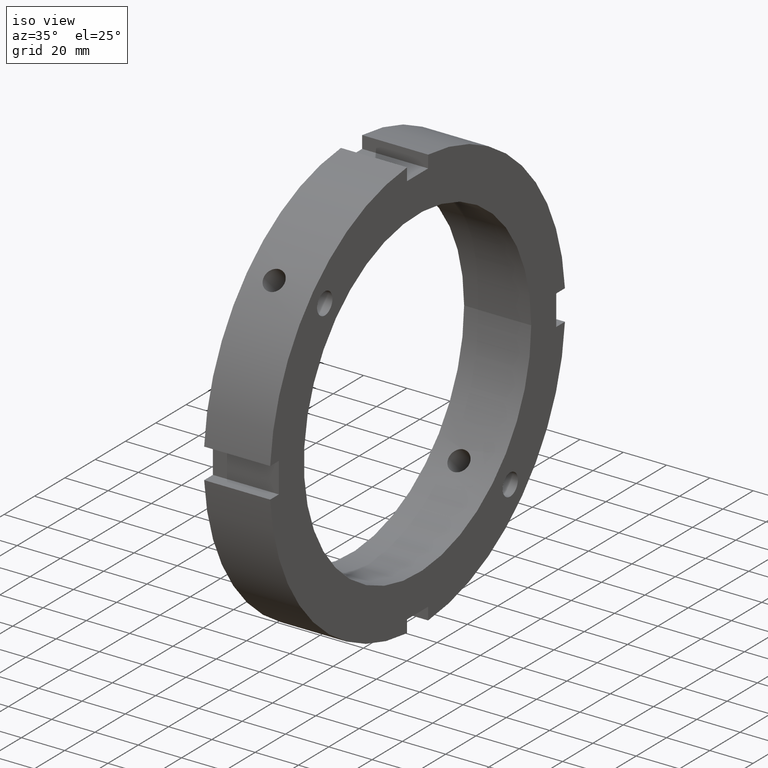
[diagram: clean part render]
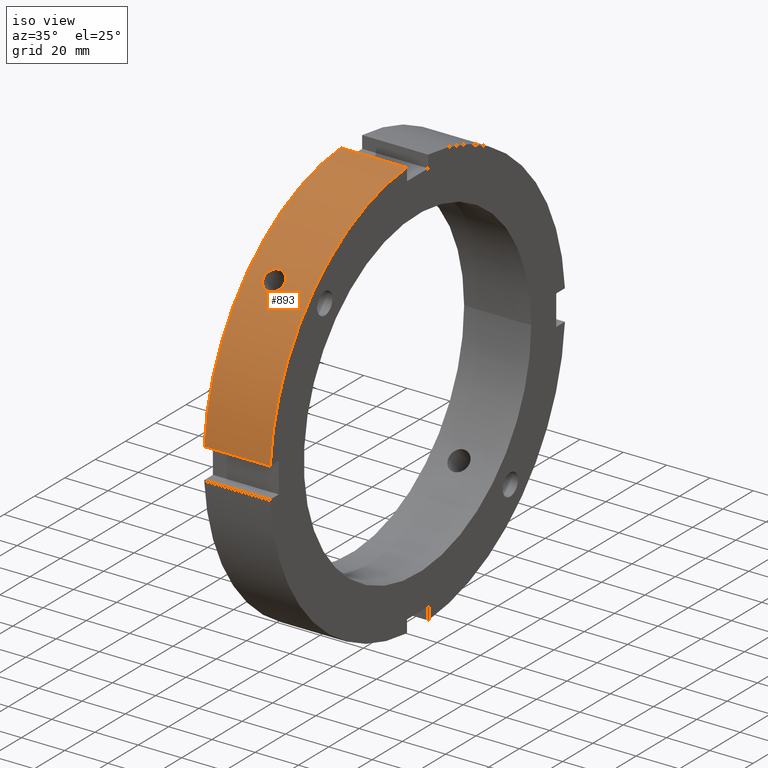
[diagram: same view with one face highlighted and labeled with its STEP entity id]
A machine part, iso view. The second image highlights one B-rep face of the part: STEP entity #893.
In plain terms, the highlighted cylindrical surface (partial cylindrical patch) has radius 97.5 mm, axis along (1, 0, 0).
Its self-contained STEP definition (entity closure, byte-faithful):
#209=CARTESIAN_POINT('',(12.999999999999982,-72.253425645310884,65.465200545920055));
#210=VERTEX_POINT('',#209);
#211=CARTESIAN_POINT('',(12.999999999999982,-72.253425645310884,65.465200545920055));
#212=CARTESIAN_POINT('',(12.397196717168008,-72.253425645310884,65.465200545920055));
#213=CARTESIAN_POINT('',(11.754280275162586,-72.172591081884917,65.554765032491147));
#214=CARTESIAN_POINT('',(10.571688298164828,-71.841959715854259,65.916939750421719));
#215=CARTESIAN_POINT('',(10.032004506462687,-71.591939672887804,66.189319152910457));
#216=CARTESIAN_POINT('',(9.179770478742569,-71.010310003639617,66.812930403979919));
#217=CARTESIAN_POINT('',(8.810378225336786,-70.639869673564718,67.205718266233347));
#218=CARTESIAN_POINT('',(8.32049028985319,-69.819408934717572,68.057695312017486));
#219=CARTESIAN_POINT('',(8.199999999999982,-69.369157370078582,68.516664961298176));
#220=CARTESIAN_POINT('',(8.199999999999982,-68.516664961298176,69.369157370078597));
#221=CARTESIAN_POINT('',(8.320490289853185,-68.057695312017486,69.819408934717586));
#222=CARTESIAN_POINT('',(8.810378225336773,-67.205718266233333,70.639869673564718));
#223=CARTESIAN_POINT('',(9.179770478742576,-66.812930403979919,71.010310003639589));
#224=CARTESIAN_POINT('',(10.032004506462687,-66.189319152910471,71.591939672887776));
#225=CARTESIAN_POINT('',(10.571688298164815,-65.916939750421705,71.841959715854273));
#226=CARTESIAN_POINT('',(11.754280275162577,-65.554765032491133,72.172591081884946));
#227=CARTESIAN_POINT('',(12.397196717168006,-65.465200545920027,72.253425645310912));
#228=CARTESIAN_POINT('',(13.602803282831957,-65.465200545920027,72.253425645310912));
#229=CARTESIAN_POINT('',(14.245719724837379,-65.554765032491133,72.172591081884946));
#230=CARTESIAN_POINT('',(15.428311701835138,-65.916939750421705,71.841959715854273));
#231=CARTESIAN_POINT('',(15.967995493537277,-66.189319152910443,71.591939672887804));
#232=CARTESIAN_POINT('',(16.820229521257399,-66.812930403979891,71.010310003639617));
#233=CARTESIAN_POINT('',(17.189621774663184,-67.205718266233333,70.639869673564732));
#234=CARTESIAN_POINT('',(17.679509710146782,-68.057695312017486,69.8194089347176));
#235=CARTESIAN_POINT('',(17.799999999999983,-68.516664961298176,69.369157370078597));
#236=CARTESIAN_POINT('',(17.799999999999983,-69.369157370078582,68.51666496129819));
#237=CARTESIAN_POINT('',(17.679509710146778,-69.819408934717586,68.057695312017501));
#238=CARTESIAN_POINT('',(17.189621774663188,-70.639869673564718,67.205718266233362));
#239=CARTESIAN_POINT('',(16.820229521257392,-71.010310003639589,66.812930403979919));
#240=CARTESIAN_POINT('',(15.967995493537281,-71.591939672887776,66.189319152910485));
#241=CARTESIAN_POINT('',(15.428311701835149,-71.841959715854259,65.916939750421719));
#242=CARTESIAN_POINT('',(14.245719724837384,-72.172591081884917,65.554765032491147));
#243=CARTESIAN_POINT('',(13.602803282831958,-72.253425645310884,65.465200545920055));
#244=CARTESIAN_POINT('',(12.999999999999982,-72.253425645310884,65.465200545920055));
#245=B_SPLINE_CURVE_WITH_KNOTS('',3,(#211,#212,#213,#214,#215,#216,#217,#218,#219,#220,#221,#222,#223,#224,#225,#226,#227,#228,#229,#230,#231,#232,#233,#234,#235,#236,#237,#238,#239,#240,#241,#242,#243,#244),.UNSPECIFIED.,.T.,.U.,(4,2,2,2,2,2,2,2,2,2,2,2,2,2,2,2,4),(0.0,0.180840984849592,0.361681969699184,0.542522918646788,0.723363867594392,0.904204816541995,1.085045765489597,1.26588675033919,1.446727735188783,1.627568720038375,1.808409704887966,1.989250653835571,2.170091602783176,2.350932551730779,2.531773500678381,2.712614485527974,2.893455470377567),.UNSPECIFIED.);
#246=EDGE_CURVE('',#210,#210,#245,.T.);
#637=CARTESIAN_POINT('',(0.499999999999972,-97.248393302923006,7.000000000000006));
#638=VERTEX_POINT('',#637);
#653=CARTESIAN_POINT('',(30.999999999999979,-97.248393302923006,7.000000000000006));
#654=VERTEX_POINT('',#653);
#661=CARTESIAN_POINT('',(0.499999999999972,-97.248393302923006,7.000000000000007));
#662=DIRECTION('',(1.0,0.0,0.0));
#663=VECTOR('',#662,30.500000000000007);
#664=LINE('',#661,#663);
#665=EDGE_CURVE('',#638,#654,#664,.T.);
#777=CARTESIAN_POINT('',(0.499999999999972,-6.999999999999989,97.248393302923006));
#778=VERTEX_POINT('',#777);
#787=CARTESIAN_POINT('',(30.999999999999979,-6.999999999999989,97.248393302923006));
#788=VERTEX_POINT('',#787);
#789=CARTESIAN_POINT('',(30.999999999999979,-6.999999999999991,97.248393302923006));
#790=DIRECTION('',(-1.0,0.0,0.0));
#791=VECTOR('',#790,30.500000000000007);
#792=LINE('',#789,#791);
#793=EDGE_CURVE('',#788,#778,#792,.T.);
#867=CARTESIAN_POINT('',(15.749999999999975,0.0,0.0));
#868=DIRECTION('',(1.0,0.0,0.0));
#869=DIRECTION('',(0.0,1.0,0.0));
#870=AXIS2_PLACEMENT_3D('',#867,#868,#869);
#871=CYLINDRICAL_SURFACE('',#870,97.5);
#872=ORIENTED_EDGE('',*,*,#665,.T.);
#873=CARTESIAN_POINT('',(30.999999999999979,0.0,0.0));
#874=DIRECTION('',(1.0,0.0,0.0));
#875=DIRECTION('',(0.0,1.0,0.0));
#876=AXIS2_PLACEMENT_3D('',#873,#874,#875);
#877=CIRCLE('',#876,97.5);
#878=EDGE_CURVE('',#788,#654,#877,.T.);
#879=ORIENTED_EDGE('',*,*,#878,.F.);
#880=ORIENTED_EDGE('',*,*,#793,.T.);
#881=CARTESIAN_POINT('',(0.499999999999972,0.0,0.0));
#882=DIRECTION('',(1.0,0.0,0.0));
#883=DIRECTION('',(0.0,1.0,0.0));
#884=AXIS2_PLACEMENT_3D('',#881,#882,#883);
#885=CIRCLE('',#884,97.5);
#886=EDGE_CURVE('',#778,#638,#885,.T.);
#887=ORIENTED_EDGE('',*,*,#886,.T.);
#888=EDGE_LOOP('',(#872,#879,#880,#887));
#889=FACE_OUTER_BOUND('',#888,.T.);
#890=ORIENTED_EDGE('',*,*,#246,.T.);
#891=EDGE_LOOP('',(#890));
#892=FACE_BOUND('',#891,.T.);
#893=ADVANCED_FACE('',(#889,#892),#871,.T.);